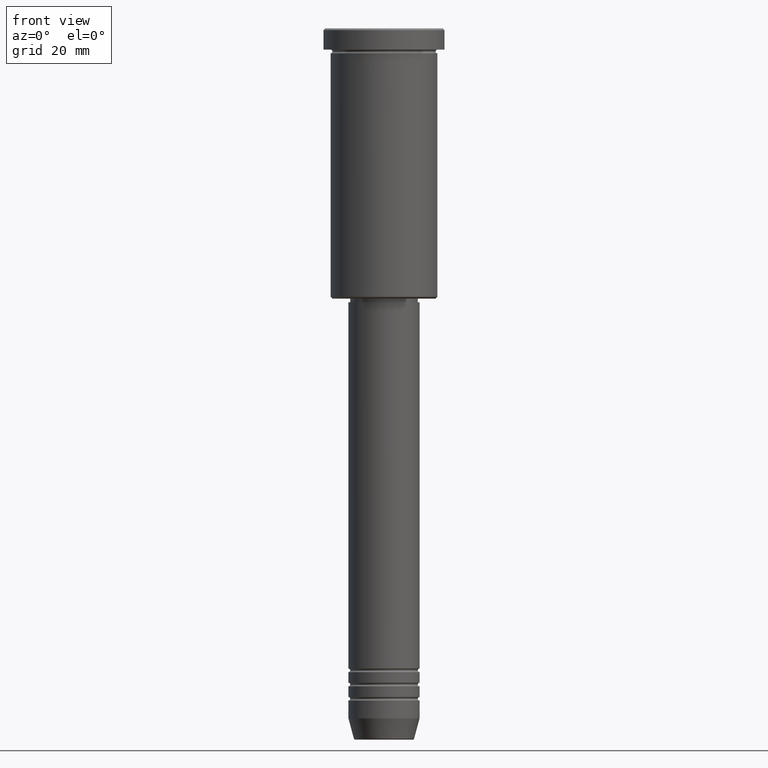
[diagram: clean part render]
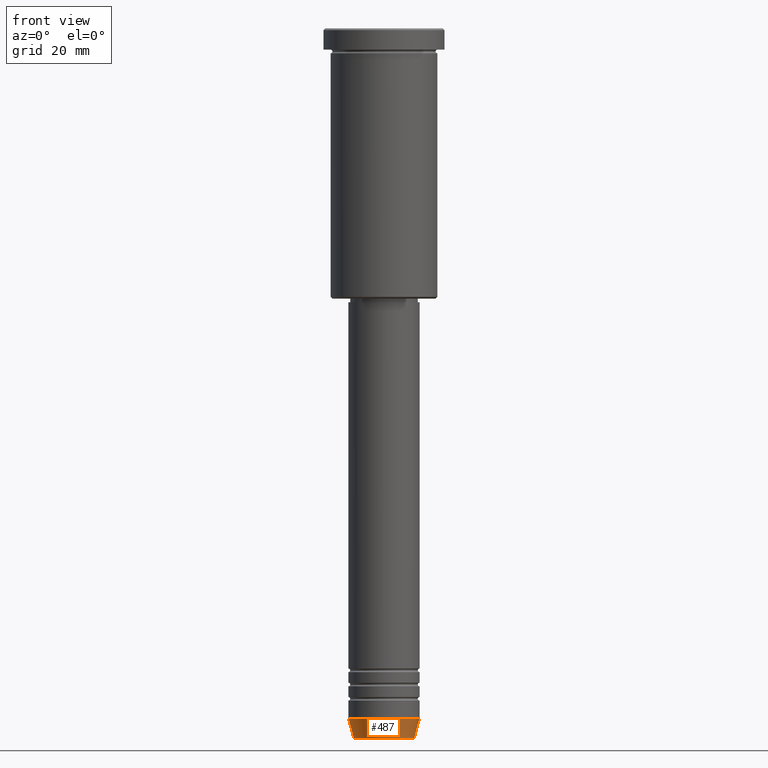
[diagram: same view with one face highlighted and labeled with its STEP entity id]
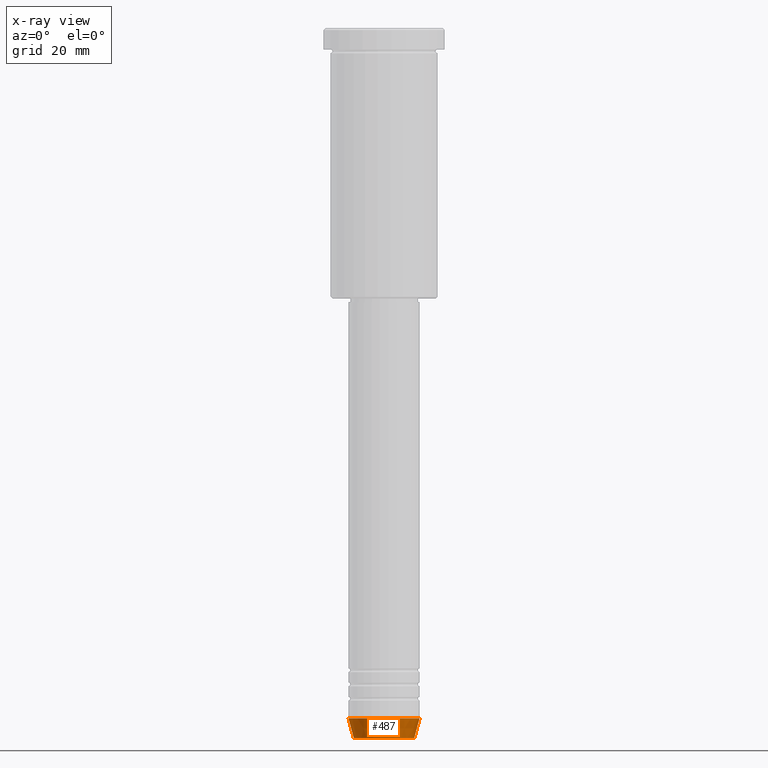
[diagram: x-ray of the same camera — body ghosted, the highlighted face saturated]
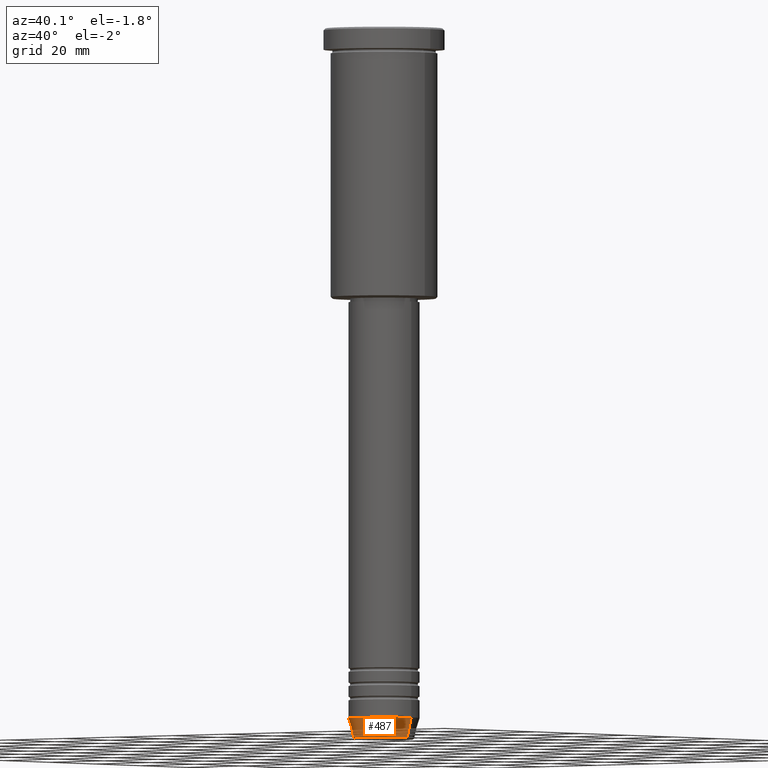
[diagram: same view with one face highlighted and labeled with its STEP entity id]
A machine part, front view. The second image highlights one B-rep face of the part: STEP entity #487.
The next image is the same camera in x-ray: the body ghosted, the highlighted face saturated — about 0% of this face is hidden behind the body in this view.
A second angle (auxiliary view) of the same face is appended — the face is thin or edge-on in the first view.
In plain terms, the highlighted conical surface has half-angle 15 deg.
Its self-contained STEP definition (entity closure, byte-faithful):
#17 = LINE ( 'NONE', #566, #978 ) ;
#30 = EDGE_LOOP ( 'NONE', ( #896, #485, #1036, #505 ) ) ;
#51 = CONICAL_SURFACE ( 'NONE', #157, 10.00000000000000178, 0.2617993877991501850 ) ;
#96 = CARTESIAN_POINT ( 'NONE',  ( 0.000000000000000000, 0.000000000000000000, -194.0000000000000284 ) ) ;
#122 = FACE_OUTER_BOUND ( 'NONE', #30, .T. ) ;
#157 = AXIS2_PLACEMENT_3D ( 'NONE', #492, #676, #582 ) ;
#177 = VERTEX_POINT ( 'NONE', #1150 ) ;
#195 = LINE ( 'NONE', #844, #954 ) ;
#218 = DIRECTION ( 'NONE',  ( 0.2588190451025214611, 0.000000000000000000, 0.9659258262890680902 ) ) ;
#269 = DIRECTION ( 'NONE',  ( 1.000000000000000000, 0.000000000000000000, 0.000000000000000000 ) ) ;
#299 = CIRCLE ( 'NONE', #1173, 8.491604264568326954 ) ;
#316 = CARTESIAN_POINT ( 'NONE',  ( 8.491604264568326954, 0.000000000000000000, -199.6294095225512706 ) ) ;
#398 = DIRECTION ( 'NONE',  ( -0.2588190451025214611, 3.169619151431773569E-17, 0.9659258262890680902 ) ) ;
#421 = VERTEX_POINT ( 'NONE', #965 ) ;
#424 = CARTESIAN_POINT ( 'NONE',  ( 0.000000000000000000, 0.000000000000000000, -199.6294095225512706 ) ) ;
#439 = AXIS2_PLACEMENT_3D ( 'NONE', #96, #1023, #269 ) ;
#485 = ORIENTED_EDGE ( 'NONE', *, *, #1180, .T. ) ;
#487 = ADVANCED_FACE ( 'NONE', ( #122 ), #51, .T. ) ;
#492 = CARTESIAN_POINT ( 'NONE',  ( 0.000000000000000000, 0.000000000000000000, -194.0000000000000284 ) ) ;
#505 = ORIENTED_EDGE ( 'NONE', *, *, #809, .F. ) ;
#566 = CARTESIAN_POINT ( 'NONE',  ( 10.00000000000000178, 0.000000000000000000, -194.0000000000000284 ) ) ;
#582 = DIRECTION ( 'NONE',  ( 1.000000000000000000, 0.000000000000000000, 0.000000000000000000 ) ) ;
#651 = VERTEX_POINT ( 'NONE', #800 ) ;
#676 = DIRECTION ( 'NONE',  ( -0.000000000000000000, -0.000000000000000000, 1.000000000000000000 ) ) ;
#694 = DIRECTION ( 'NONE',  ( -0.000000000000000000, -0.000000000000000000, 1.000000000000000000 ) ) ;
#800 = CARTESIAN_POINT ( 'NONE',  ( -10.00000000000000178, 1.224646799147353454E-15, -194.0000000000000284 ) ) ;
#808 = CIRCLE ( 'NONE', #439, 10.00000000000000178 ) ;
#809 = EDGE_CURVE ( 'NONE', #651, #177, #808, .T. ) ;
#844 = CARTESIAN_POINT ( 'NONE',  ( -10.00000000000000178, 1.224646799147353454E-15, -194.0000000000000284 ) ) ;
#896 = ORIENTED_EDGE ( 'NONE', *, *, #1014, .F. ) ;
#929 = VERTEX_POINT ( 'NONE', #316 ) ;
#954 = VECTOR ( 'NONE', #398, 1000.000000000000000 ) ;
#960 = DIRECTION ( 'NONE',  ( 1.000000000000000000, 0.000000000000000000, 0.000000000000000000 ) ) ;
#965 = CARTESIAN_POINT ( 'NONE',  ( -8.491604264568326954, 1.132284198685157767E-15, -199.6294095225512706 ) ) ;
#978 = VECTOR ( 'NONE', #218, 1000.000000000000000 ) ;
#1001 = EDGE_CURVE ( 'NONE', #929, #177, #17, .T. ) ;
#1014 = EDGE_CURVE ( 'NONE', #421, #651, #195, .T. ) ;
#1023 = DIRECTION ( 'NONE',  ( -0.000000000000000000, -0.000000000000000000, 1.000000000000000000 ) ) ;
#1036 = ORIENTED_EDGE ( 'NONE', *, *, #1001, .T. ) ;
#1150 = CARTESIAN_POINT ( 'NONE',  ( 10.00000000000000178, 0.000000000000000000, -194.0000000000000284 ) ) ;
#1173 = AXIS2_PLACEMENT_3D ( 'NONE', #424, #694, #960 ) ;
#1180 = EDGE_CURVE ( 'NONE', #421, #929, #299, .T. ) ;